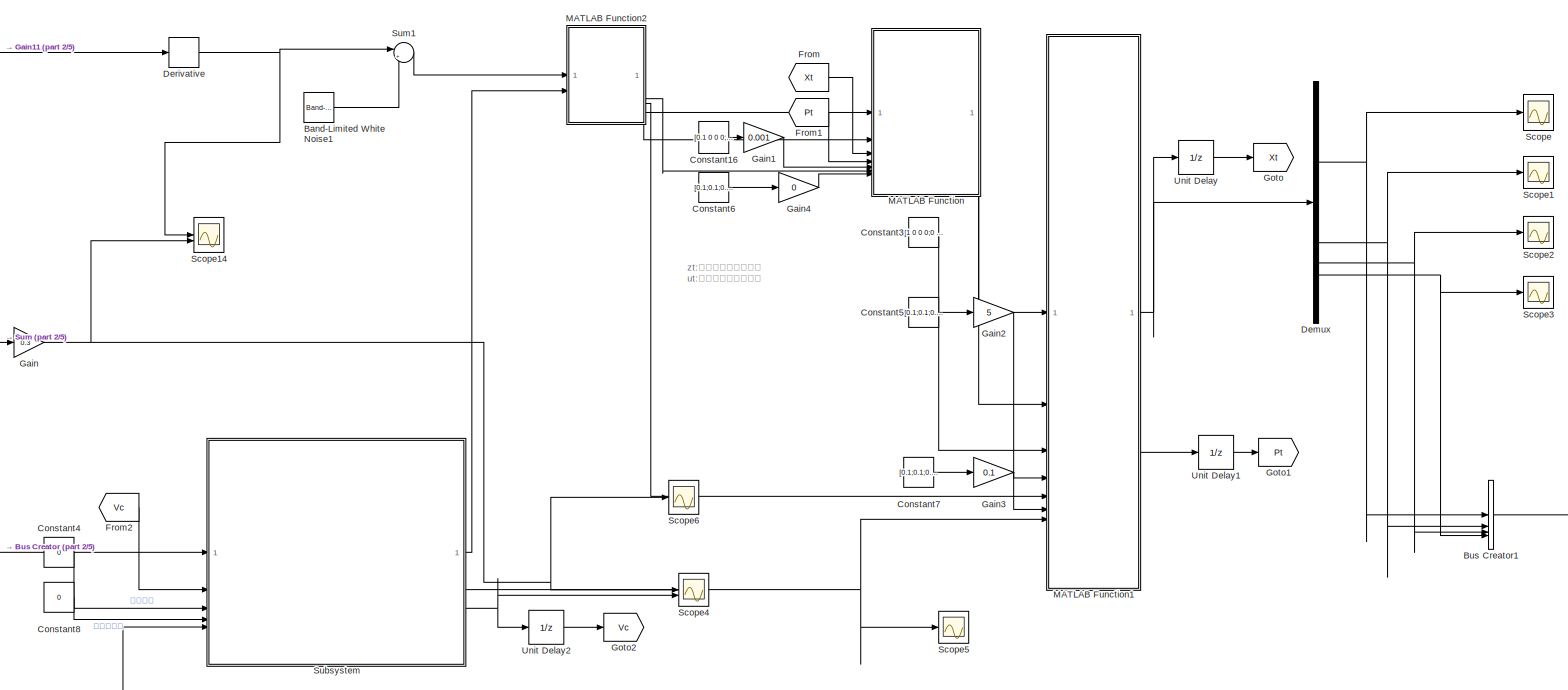
[diagram: root canvas - part 1/5, top center region]
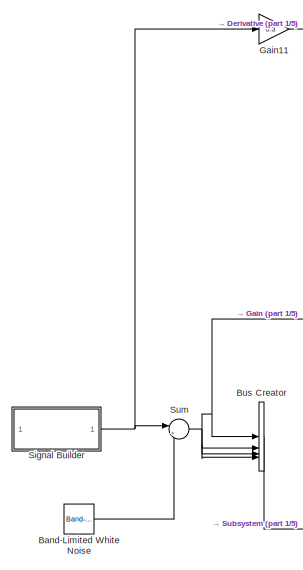
[diagram: root canvas - part 2/5, top left region]
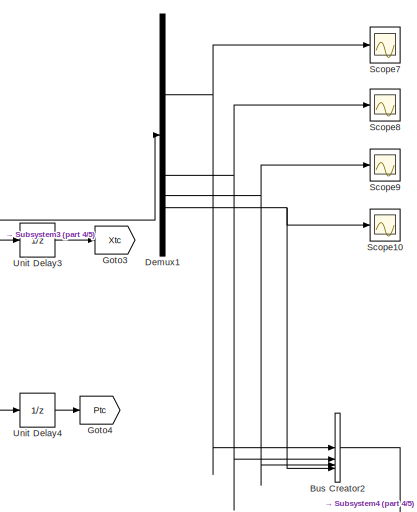
[diagram: root canvas - part 3/5, bottom right region]
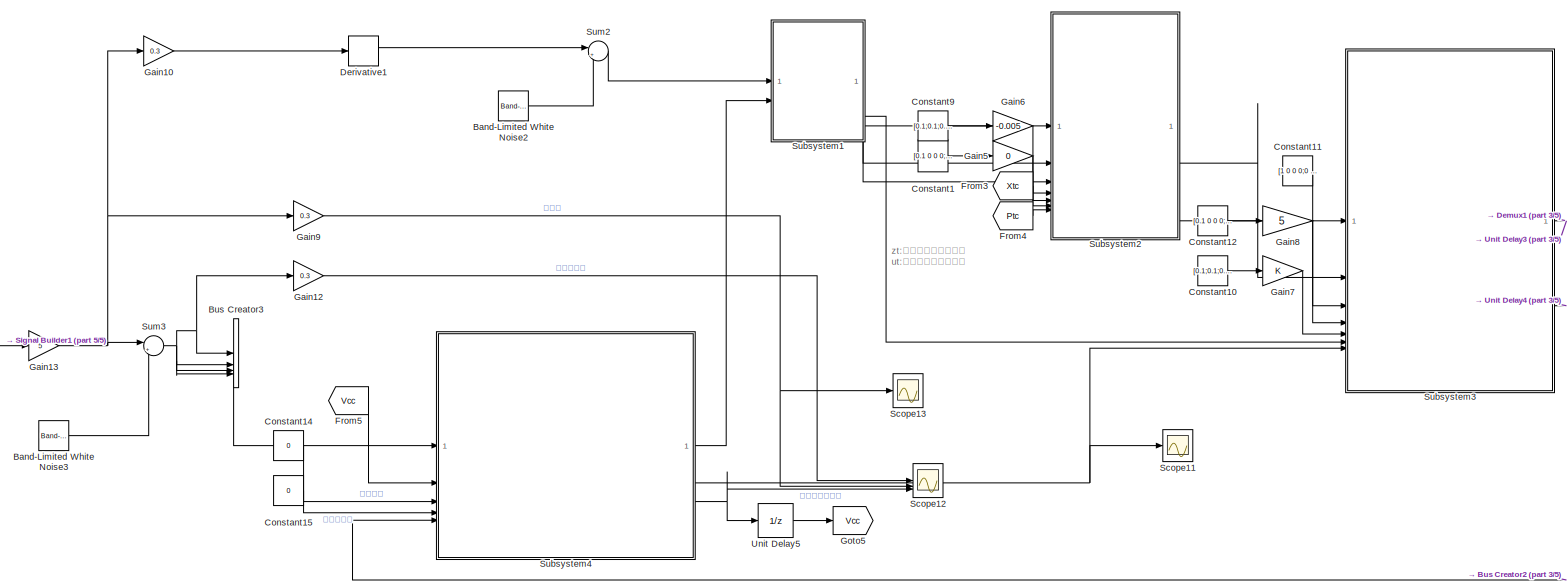
[diagram: root canvas - part 4/5, bottom center region]
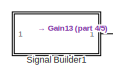
[diagram: root canvas - part 5/5, bottom left region]
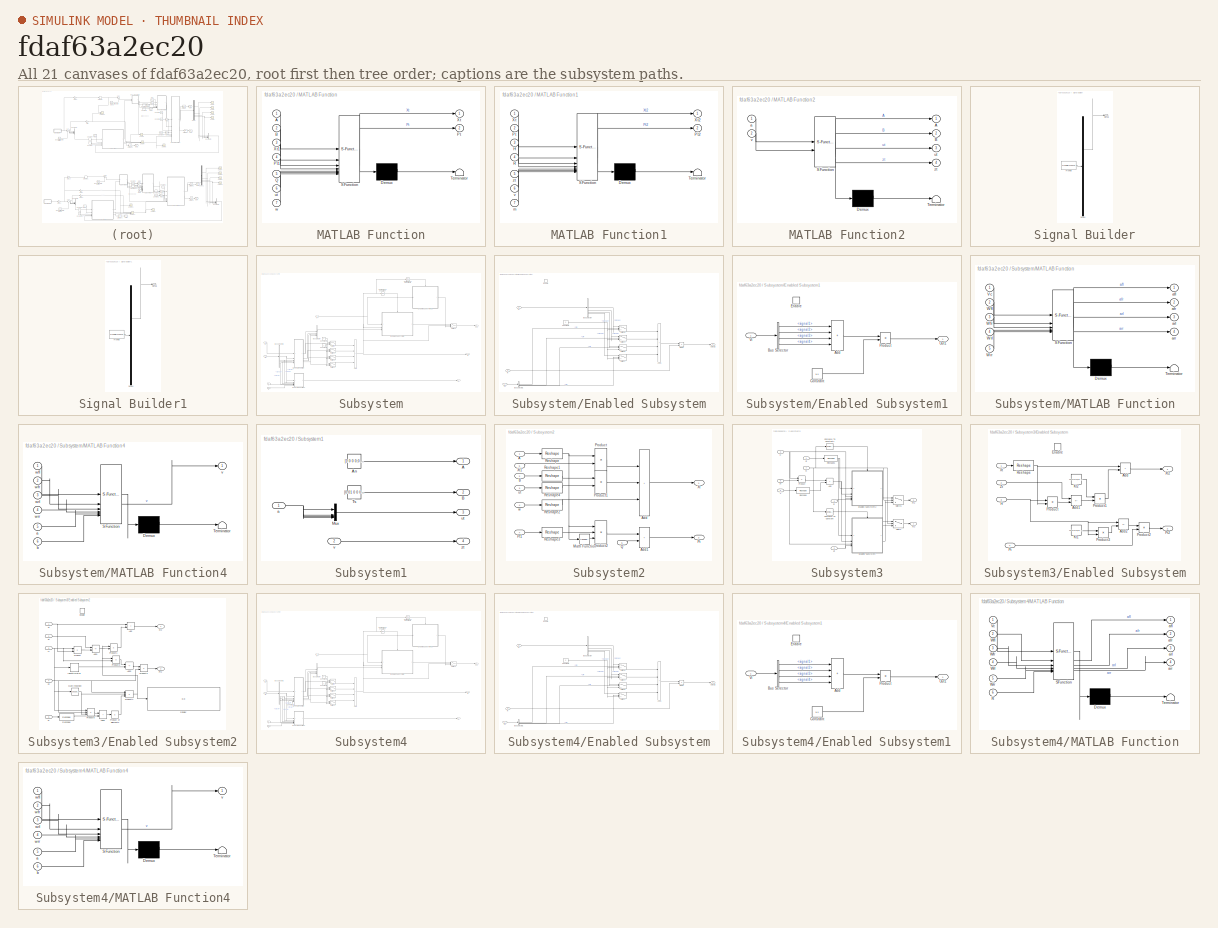
[diagram: thumbnail index - all 21 canvases of the model, root first then tree order]
MODEL slx_fdaf63a2ec20
KIND model
CONFIG AbsTol = auto
CONFIG EnableMultiTasking = off
CONFIG FixedStep = 0.01
CONFIG MaxStep = auto
CONFIG MinStep = auto
CONFIG RelTol = 1e-3
CONFIG SampleTimeConstraint = Unconstrained
CONFIG SolverName = FixedStepDiscrete
CONFIG StartTime = 0.0
CONFIG StopTime = 10.0
BLOCK [Reference] Band-Limited White Noise  REF=simulink/Sources/Band-Limited
White Noise
  Commented = on
  SourceBlock = simulink/Sources/Band-Limited\nWhite Noise
  SourceType = Band-Limited White Noise.
BLOCK [Reference] Band-Limited White Noise1  REF=simulink/Sources/Band-Limited
White Noise
  Commented = on
  SourceBlock = simulink/Sources/Band-Limited\nWhite Noise
  SourceType = Band-Limited White Noise.
BLOCK [Reference] Band-Limited White Noise2  REF=simulink/Sources/Band-Limited
White Noise
  SourceBlock = simulink/Sources/Band-Limited\nWhite Noise
  SourceType = Band-Limited White Noise.
BLOCK [Reference] Band-Limited White Noise3  REF=simulink/Sources/Band-Limited
White Noise
  SourceBlock = simulink/Sources/Band-Limited\nWhite Noise
  SourceType = Band-Limited White Noise.
BLOCK [BusCreator] Bus Creator
  Commented = on
  DisplayOption = bar
  InheritFromInputs = on
  Inputs = 4
BLOCK [BusCreator] Bus Creator1
  Commented = on
  DisplayOption = bar
  InheritFromInputs = on
  Inputs = 4
BLOCK [BusCreator] Bus Creator2
  DisplayOption = bar
  InheritFromInputs = on
  Inputs = 4
BLOCK [BusCreator] Bus Creator3
  DisplayOption = bar
  InheritFromInputs = on
  Inputs = 4
BLOCK [Constant] Constant1
  Value = [0.1 0 0 0;0 0.1 0 0;0 0 0.1 0;0 0 0 0.1]
BLOCK [Constant] Constant10
  Value = [0.1;0.1;0.1;0.1]
BLOCK [Constant] Constant11
  Value = [1 0 0 0;0 1 0 0;0 0 1 0;0 0 0 1]
BLOCK [Constant] Constant12
  Value = [0.1 0 0 0;0 0.1 0 0;0 0 0.1 0;0 0 0 0.1]
BLOCK [Constant] Constant14
  Value = 0
BLOCK [Constant] Constant15
  Value = 0
BLOCK [Constant] Constant16
  Commented = on
  Value = [0.1 0 0 0;0 0.1 0 0;0 0 0.1 0;0 0 0 0.1]
BLOCK [Constant] Constant3
  Commented = on
  Value = [1 0 0 0;0 1 0 0;0 0 1 0;0 0 0 1]
BLOCK [Constant] Constant4
  Commented = on
  Value = 0
BLOCK [Constant] Constant5
  Commented = on
  Value = [0.1;0.1;0.1;0.1]
BLOCK [Constant] Constant6
  Commented = on
  Value = [0.1;0.1;0.1;0.1]
BLOCK [Constant] Constant7
  Commented = on
  Value = [0.1;0.1;0.1;0.1]
BLOCK [Constant] Constant8
  Commented = on
  Value = 0
BLOCK [Constant] Constant9
  Value = [0.1;0.1;0.1;0.1]
BLOCK [Demux] Demux
  Commented = on
  NameLocation = right
BLOCK [Demux] Demux1
  NameLocation = right
BLOCK [Derivative] Derivative
  Commented = on
BLOCK [Derivative] Derivative1
BLOCK [From] From
  Commented = on
  GotoTag = Xt
BLOCK [From] From1
  Commented = on
  GotoTag = Pt
BLOCK [From] From2
  Commented = on
  GotoTag = Vc
BLOCK [From] From3
  GotoTag = Xtc
BLOCK [From] From4
  GotoTag = Ptc
BLOCK [From] From5
  GotoTag = Vcc
BLOCK [Gain] Gain
  Commented = on
  Gain = 0.3
BLOCK [Gain] Gain1
  Commented = on
  Gain = 0.001
BLOCK [Gain] Gain10
  Gain = 0.3
BLOCK [Gain] Gain11
  Commented = on
  Gain = 0.3
BLOCK [Gain] Gain12
  Gain = 0.3
BLOCK [Gain] Gain13
  Gain = 5
BLOCK [Gain] Gain2
  Commented = on
  Gain = 5
BLOCK [Gain] Gain3
  Commented = on
  Gain = 0.1
BLOCK [Gain] Gain4
  Commented = on
  Gain = 0
BLOCK [Gain] Gain5
  Gain = 0
BLOCK [Gain] Gain6
  Gain = -0.005
BLOCK [Gain] Gain7
BLOCK [Gain] Gain8
  Gain = 5
BLOCK [Gain] Gain9
  Gain = 0.3
BLOCK [Goto] Goto
  Commented = on
  GotoTag = Xt
BLOCK [Goto] Goto1
  Commented = on
  GotoTag = Pt
BLOCK [Goto] Goto2
  Commented = on
  GotoTag = Vc
BLOCK [Goto] Goto3
  GotoTag = Xtc
BLOCK [Goto] Goto4
  GotoTag = Ptc
BLOCK [Goto] Goto5
  GotoTag = Vcc
BLOCK [SubSystem] MATLAB Function
  Commented = on
  ErrorFcn = Stateflow.Translate.translate
  LibrarySourceBlock = simulink/User-Defined\nFunctions/MATLAB Function
  PermitHierarchicalResolution = ExplicitOnly
  SFBlockType = MATLAB Function
  TreatAsAtomicUnit = on
BLOCK [Demux] MATLAB Function/ Demux 
  Outputs = 1
BLOCK [S-Function] MATLAB Function/ SFunction 
  EnableBusSupport = on
  FunctionName = sf_sfun
  PortCounts = [7 3]
  SFcnIsStateOwnerBlock = off
  SFunctionDeploymentMode = off
  Tag = Stateflow S-Function 2
BLOCK [Terminator] MATLAB Function/ Terminator 
BLOCK [Inport] MATLAB Function/A
BLOCK [Inport] MATLAB Function/B
  Port = 2
BLOCK [Outport] MATLAB Function/Pt
  Port = 2
BLOCK [Inport] MATLAB Function/Pt1
  Port = 4
BLOCK [Inport] MATLAB Function/Q
  Port = 5
BLOCK [Outport] MATLAB Function/Xt
BLOCK [Inport] MATLAB Function/Xt1
  Port = 3
BLOCK [Inport] MATLAB Function/ut
  Port = 6
BLOCK [Inport] MATLAB Function/w
  Port = 7
BLOCK [SubSystem] MATLAB Function1
  Commented = on
  ErrorFcn = Stateflow.Translate.translate
  LibrarySourceBlock = simulink/User-Defined\nFunctions/MATLAB Function
  PermitHierarchicalResolution = ExplicitOnly
  SFBlockType = MATLAB Function
  TreatAsAtomicUnit = on
BLOCK [Demux] MATLAB Function1/ Demux 
  Outputs = 1
BLOCK [S-Function] MATLAB Function1/ SFunction 
  EnableBusSupport = on
  FunctionName = sf_sfun
  PortCounts = [7 3]
  SFcnIsStateOwnerBlock = off
  SFunctionDeploymentMode = off
  Tag = Stateflow S-Function 1
BLOCK [Terminator] MATLAB Function1/ Terminator 
BLOCK [Inport] MATLAB Function1/H
  Port = 3
BLOCK [Inport] MATLAB Function1/Pt
  Port = 2
BLOCK [Outport] MATLAB Function1/Pt2
  Port = 2
BLOCK [Inport] MATLAB Function1/R
  Port = 4
BLOCK [Inport] MATLAB Function1/Xt
BLOCK [Outport] MATLAB Function1/Xt2
BLOCK [Inport] MATLAB Function1/m
  Port = 7
BLOCK [Inport] MATLAB Function1/v
  Port = 6
BLOCK [Inport] MATLAB Function1/zt
  Port = 5
BLOCK [SubSystem] MATLAB Function2
  Commented = on
  ErrorFcn = Stateflow.Translate.translate
  LibrarySourceBlock = simulink/User-Defined\nFunctions/MATLAB Function
  PermitHierarchicalResolution = ExplicitOnly
  SFBlockType = MATLAB Function
  TreatAsAtomicUnit = on
BLOCK [Demux] MATLAB Function2/ Demux 
  Outputs = 1
BLOCK [S-Function] MATLAB Function2/ SFunction 
  EnableBusSupport = on
  FunctionName = sf_sfun
  PortCounts = [2 5]
  SFcnIsStateOwnerBlock = off
  SFunctionDeploymentMode = off
  Tag = Stateflow S-Function 3
BLOCK [Terminator] MATLAB Function2/ Terminator 
BLOCK [Outport] MATLAB Function2/A
BLOCK [Outport] MATLAB Function2/B
  Port = 2
BLOCK [Inport] MATLAB Function2/a
BLOCK [Outport] MATLAB Function2/ut
  Port = 3
BLOCK [Inport] MATLAB Function2/v
  Port = 2
BLOCK [Outport] MATLAB Function2/zt
  Port = 4
BLOCK [Scope] Scope
  Commented = on
  Floating = off
  NumInputPorts = 1
  ScopeSpecificationString = Simulink.scopes.TimeScopeBlockCfg('CurrentConfiguration', extmgr.ConfigurationSet(extmgr.Configuration('Core','General UI',true),extmgr.Configuration('Core','Source UI',true),extmgr.Configuration('Sources','WiredSimulink',true),extmgr.Configuration('Visuals','Time Domain',true,'SerializedDisplays',{struct('MinYLimReal','-1.44127','MaxYLimReal','16.16074','YLabelReal','','MinYLimMag','0.00000','Max...<+1403ch>
BLOCK [Scope] Scope1
  Commented = on
  Floating = off
  NumInputPorts = 1
  ScopeSpecificationString = Simulink.scopes.TimeScopeBlockCfg('CurrentConfiguration', extmgr.ConfigurationSet(extmgr.Configuration('Core','General UI',true),extmgr.Configuration('Core','Source UI',true),extmgr.Configuration('Sources','WiredSimulink',true,'DataLoggingVariableName','ScopeData1'),extmgr.Configuration('Visuals','Time Domain',true,'SerializedDisplays',{struct('MinYLimReal','-1.43694','MaxYLimReal','9.96818','YLab...<+1366ch>
BLOCK [Scope] Scope10
  Floating = off
  NumInputPorts = 1
  ScopeSpecificationString = Simulink.scopes.TimeScopeBlockCfg('CurrentConfiguration', extmgr.ConfigurationSet(extmgr.Configuration('Core','General UI',true),extmgr.Configuration('Core','Source UI',true),extmgr.Configuration('Sources','WiredSimulink',true,'DataLoggingVariableName','ScopeData1'),extmgr.Configuration('Visuals','Time Domain',true,'SerializedDisplays',{struct('MinYLimReal','-10.16906','MaxYLimReal','11.33652','YL...<+1372ch>
BLOCK [Scope] Scope11
  Floating = off
  NumInputPorts = 1
  ScopeSpecificationString = Simulink.scopes.TimeScopeBlockCfg('CurrentConfiguration', extmgr.ConfigurationSet(extmgr.Configuration('Core','General UI',true),extmgr.Configuration('Core','Source UI',true),extmgr.Configuration('Sources','WiredSimulink',true,'DataLoggingVariableName','ScopeData5'),extmgr.Configuration('Visuals','Time Domain',true,'SerializedDisplays',{struct('MinYLimReal','-0.5','MaxYLimReal','4.5','YLabelReal',...<+1400ch>
BLOCK [Scope] Scope12
  Floating = off
  NumInputPorts = 3
  ScopeSpecificationString = Simulink.scopes.TimeScopeBlockCfg('CurrentConfiguration', extmgr.ConfigurationSet(extmgr.Configuration('Core','General UI',true),extmgr.Configuration('Core','Source UI',true),extmgr.Configuration('Sources','WiredSimulink',true,'DataLoggingVariableName','ScopeData6'),extmgr.Configuration('Visuals','Time Domain',true,'SerializedDisplays',{struct('MinYLimReal','-7.72208','MaxYLimReal','61.27651','YLa...<+1456ch>
BLOCK [Scope] Scope13
  Floating = off
  NumInputPorts = 1
  ScopeSpecificationString = Simulink.scopes.TimeScopeBlockCfg('CurrentConfiguration', extmgr.ConfigurationSet(extmgr.Configuration('Core','General UI',true),extmgr.Configuration('Core','Source UI',true),extmgr.Configuration('Sources','WiredSimulink',true,'DataLoggingVariableName','ScopeData7'),extmgr.Configuration('Visuals','Time Domain',true,'SerializedDisplays',{struct('MinYLimReal','-2.17422','MaxYLimReal','17.4302','YLab...<+1435ch>
BLOCK [Scope] Scope14
  Commented = on
  Floating = off
  NumInputPorts = 2
  ScopeSpecificationString = Simulink.scopes.TimeScopeBlockCfg('CurrentConfiguration', extmgr.ConfigurationSet(extmgr.Configuration('Core','General UI',true),extmgr.Configuration('Core','Source UI',true),extmgr.Configuration('Sources','WiredSimulink',true,'DataLoggingVariableName','ScopeData8'),extmgr.Configuration('Visuals','Time Domain',true,'SerializedDisplays',{struct('MinYLimReal','-17.75','MaxYLimReal','27.75','YLabelRe...<+1436ch>
BLOCK [Scope] Scope2
  Commented = on
  Floating = off
  NumInputPorts = 1
  ScopeSpecificationString = Simulink.scopes.TimeScopeBlockCfg('CurrentConfiguration', extmgr.ConfigurationSet(extmgr.Configuration('Core','General UI',true),extmgr.Configuration('Core','Source UI',true),extmgr.Configuration('Sources','WiredSimulink',true,'DataLoggingVariableName','ScopeData2'),extmgr.Configuration('Visuals','Time Domain',true,'SerializedDisplays',{struct('MinYLimReal','-0.83694','MaxYLimReal','10.56818','YLa...<+1370ch>
BLOCK [Scope] Scope3
  Commented = on
  Floating = off
  NumInputPorts = 1
  ScopeSpecificationString = Simulink.scopes.TimeScopeBlockCfg('CurrentConfiguration', extmgr.ConfigurationSet(extmgr.Configuration('Core','General UI',true),extmgr.Configuration('Core','Source UI',true),extmgr.Configuration('Sources','WiredSimulink',true,'DataLoggingVariableName','ScopeData3'),extmgr.Configuration('Visuals','Time Domain',true,'SerializedDisplays',{struct('MinYLimReal','-10.16906','MaxYLimReal','11.33652','YL...<+1372ch>
BLOCK [Scope] Scope4
  Commented = on
  Floating = off
  NumInputPorts = 2
  ScopeSpecificationString = Simulink.scopes.TimeScopeBlockCfg('CurrentConfiguration', extmgr.ConfigurationSet(extmgr.Configuration('Core','General UI',true),extmgr.Configuration('Core','Source UI',true),extmgr.Configuration('Sources','WiredSimulink',true,'DataLoggingVariableName','ScopeData1'),extmgr.Configuration('Visuals','Time Domain',true,'SerializedDisplays',{struct('MinYLimReal','-1.977','MaxYLimReal','10.97809','YLabe...<+1449ch>
BLOCK [Scope] Scope5
  Commented = on
  Floating = off
  NumInputPorts = 1
  ScopeSpecificationString = Simulink.scopes.TimeScopeBlockCfg('CurrentConfiguration', extmgr.ConfigurationSet(extmgr.Configuration('Core','General UI',true),extmgr.Configuration('Core','Source UI',true),extmgr.Configuration('Sources','WiredSimulink',true,'DataLoggingVariableName','ScopeData2'),extmgr.Configuration('Visuals','Time Domain',true,'SerializedDisplays',{struct('MinYLimReal','-0.5','MaxYLimReal','4.5','YLabelReal',...<+1399ch>
BLOCK [Scope] Scope6
  Commented = on
  Floating = off
  NumInputPorts = 1
  ScopeSpecificationString = Simulink.scopes.TimeScopeBlockCfg('CurrentConfiguration', extmgr.ConfigurationSet(extmgr.Configuration('Core','General UI',true),extmgr.Configuration('Core','Source UI',true),extmgr.Configuration('Sources','WiredSimulink',true,'DataLoggingVariableName','ScopeData3'),extmgr.Configuration('Visuals','Time Domain',true,'SerializedDisplays',{struct('MinYLimReal','-2.17422','MaxYLimReal','17.4302','YLab...<+1435ch>
BLOCK [Scope] Scope7
  Floating = off
  NumInputPorts = 1
  ScopeSpecificationString = Simulink.scopes.TimeScopeBlockCfg('CurrentConfiguration', extmgr.ConfigurationSet(extmgr.Configuration('Core','General UI',true),extmgr.Configuration('Core','Source UI',true),extmgr.Configuration('Sources','WiredSimulink',true,'DataLoggingVariableName','ScopeData2'),extmgr.Configuration('Visuals','Time Domain',true,'SerializedDisplays',{struct('MinYLimReal','-11.35983','MaxYLimReal','101.27008','Y...<+1449ch>
BLOCK [Scope] Scope8
  Floating = off
  NumInputPorts = 1
  ScopeSpecificationString = Simulink.scopes.TimeScopeBlockCfg('CurrentConfiguration', extmgr.ConfigurationSet(extmgr.Configuration('Core','General UI',true),extmgr.Configuration('Core','Source UI',true),extmgr.Configuration('Sources','WiredSimulink',true,'DataLoggingVariableName','ScopeData3'),extmgr.Configuration('Visuals','Time Domain',true,'SerializedDisplays',{struct('MinYLimReal','-2.13435','MaxYLimReal','16.40189','YLa...<+1370ch>
BLOCK [Scope] Scope9
  Floating = off
  NumInputPorts = 1
  ScopeSpecificationString = Simulink.scopes.TimeScopeBlockCfg('CurrentConfiguration', extmgr.ConfigurationSet(extmgr.Configuration('Core','General UI',true),extmgr.Configuration('Core','Source UI',true),extmgr.Configuration('Sources','WiredSimulink',true,'DataLoggingVariableName','ScopeData4'),extmgr.Configuration('Visuals','Time Domain',true,'SerializedDisplays',{struct('MinYLimReal','-1.53435','MaxYLimReal','17.00189','YLa...<+1370ch>
BLOCK [SubSystem] Signal Builder
  ClipboardFcn = sigbuilder_block('clipboard');
  CloseFcn = sigbuilder_block('close');
  Commented = on
  ContinueFcn = sigbuilder_block('continue');
  CopyFcn = sigbuilder_block('copy');
  DeleteFcn = sigbuilder_block('delete');
  LoadFcn = sigbuilder_block('load');
  MaskHideContents = on
  ModelCloseFcn = sigbuilder_block('modelClose');
  NameChangeFcn = sigbuilder_block('namechange');
  OpenFcn = sigbuilder_block('open',[437.6 199.2 550.4 400 ]);
  PauseFcn = sigbuilder_block('pause');
  PreSaveFcn = sigbuilder_block('preSave');
  StartFcn = sigbuilder_block('start');
  StopFcn = sigbuilder_block('stop');
  Tag = STV Subsys
BLOCK [Demux] Signal Builder/Demux
  DisplayOption = none
  Outputs = 1
  Tag = STV Demux
BLOCK [FromWorkspace] Signal Builder/FromWs
  Tag = STV FromWs
  VariableName = tuvar
BLOCK [Outport] Signal Builder/Signal 1
  Tag = STV Outport
BLOCK [SubSystem] Signal Builder1
  ClipboardFcn = sigbuilder_block('clipboard');
  CloseFcn = sigbuilder_block('close');
  ContinueFcn = sigbuilder_block('continue');
  CopyFcn = sigbuilder_block('copy');
  DeleteFcn = sigbuilder_block('delete');
  LoadFcn = sigbuilder_block('load');
  MaskHideContents = on
  ModelCloseFcn = sigbuilder_block('modelClose');
  NameChangeFcn = sigbuilder_block('namechange');
  OpenFcn = sigbuilder_block('open',[437.6 199.2 550.4 400 ]);
  PauseFcn = sigbuilder_block('pause');
  PreSaveFcn = sigbuilder_block('preSave');
  StartFcn = sigbuilder_block('start');
  StopFcn = sigbuilder_block('stop');
  Tag = STV Subsys
BLOCK [Demux] Signal Builder1/Demux
  DisplayOption = none
  Outputs = 1
  Tag = STV Demux
BLOCK [FromWorkspace] Signal Builder1/FromWs
  Tag = STV FromWs
  VariableName = tuvar
BLOCK [Outport] Signal Builder1/Signal 1
  Tag = STV Outport
BLOCK [SubSystem] Subsystem
  Commented = on
BLOCK [Sum] Subsystem/Add
  IconShape = rectangular
  Inputs = ++++
BLOCK [BusCreator] Subsystem/Bus Creator
  DisplayOption = bar
  InheritFromInputs = on
  Inputs = 4
BLOCK [BusSelector] Subsystem/Bus Selector1
  OutputSignals = signal1,signal2,signal3,signal4
BLOCK [Reference] Subsystem/Compare To Constant  REF=simulink/Logic and Bit
Operations/Compare
To Constant
  SourceBlock = simulink/Logic and Bit\nOperations/Compare\nTo Constant
  SourceType = Compare To Constant
BLOCK [Reference] Subsystem/Compare To Constant1  REF=simulink/Logic and Bit
Operations/Compare
To Constant
  SourceBlock = simulink/Logic and Bit\nOperations/Compare\nTo Constant
  SourceType = Compare To Constant
BLOCK [Constant] Subsystem/Constant4
  Value = 0
BLOCK [Constant] Subsystem/Constant5
BLOCK [SubSystem] Subsystem/Enabled Subsystem
  TreatAsAtomicUnit = on
BLOCK [Sum] Subsystem/Enabled Subsystem/Add1
  IconShape = rectangular
  Inputs = ++++
BLOCK [BusSelector] Subsystem/Enabled Subsystem/Bus Selector
  OutputSignals = signal1,signal2,signal3,signal4
BLOCK [BusSelector] Subsystem/Enabled Subsystem/Bus Selector1
  OutputSignals = afl,afr,arl,arr
BLOCK [Constant] Subsystem/Enabled Subsystem/Constant1
  Value = 0
BLOCK [Product] Subsystem/Enabled Subsystem/Divide
  Inputs = */
BLOCK [EnablePort] Subsystem/Enabled Subsystem/Enable
BLOCK [Inport] Subsystem/Enabled Subsystem/In3
  Port = 3
BLOCK [Outport] Subsystem/Enabled Subsystem/Output2
BLOCK [Switch] Subsystem/Enabled Subsystem/Switch4
  Criteria = u2 ~= 0
  InputSameDT = off
  SaturateOnIntegerOverflow = off
  Threshold = 1
BLOCK [Switch] Subsystem/Enabled Subsystem/Switch5
  Criteria = u2 ~= 0
  InputSameDT = off
  SaturateOnIntegerOverflow = off
  Threshold = 1
BLOCK [Switch] Subsystem/Enabled Subsystem/Switch6
  Criteria = u2 ~= 0
  InputSameDT = off
  SaturateOnIntegerOverflow = off
  Threshold = 1
BLOCK [Switch] Subsystem/Enabled Subsystem/Switch7
  Criteria = u2 ~= 0
  InputSameDT = off
  SaturateOnIntegerOverflow = off
  Threshold = 1
BLOCK [Inport] Subsystem/Enabled Subsystem/Vi
BLOCK [Inport] Subsystem/Enabled Subsystem/m
  Port = 2
BLOCK [SubSystem] Subsystem/Enabled Subsystem1
  TreatAsAtomicUnit = on
BLOCK [Sum] Subsystem/Enabled Subsystem1/Add
  IconShape = rectangular
  Inputs = ++++
BLOCK [BusSelector] Subsystem/Enabled Subsystem1/Bus Selector
  OutputSignals = signal1,signal2,signal3,signal4
BLOCK [Constant] Subsystem/Enabled Subsystem1/Constant
  Value = 1/4
BLOCK [EnablePort] Subsystem/Enabled Subsystem1/Enable
BLOCK [Outport] Subsystem/Enabled Subsystem1/Out1
BLOCK [Product] Subsystem/Enabled Subsystem1/Product
BLOCK [Inport] Subsystem/Enabled Subsystem1/Vi
BLOCK [SubSystem] Subsystem/MATLAB Function
  ErrorFcn = Stateflow.Translate.translate
  LibrarySourceBlock = simulink/User-Defined\nFunctions/MATLAB Function
  PermitHierarchicalResolution = ExplicitOnly
  SFBlockType = MATLAB Function
  TreatAsAtomicUnit = on
BLOCK [Demux] Subsystem/MATLAB Function/ Demux 
  Outputs = 1
BLOCK [S-Function] Subsystem/MATLAB Function/ SFunction 
  EnableBusSupport = on
  FunctionName = sf_sfun
  PortCounts = [5 5]
  SFcnIsStateOwnerBlock = off
  SFunctionDeploymentMode = off
  Tag = Stateflow S-Function 5
BLOCK [Terminator] Subsystem/MATLAB Function/ Terminator 
BLOCK [Inport] Subsystem/MATLAB Function/Vc
BLOCK [Inport] Subsystem/MATLAB Function/Wfl
  Port = 2
BLOCK [Inport] Subsystem/MATLAB Function/Wfr
  Port = 3
BLOCK [Inport] Subsystem/MATLAB Function/Wrl
  Port = 4
BLOCK [Inport] Subsystem/MATLAB Function/Wrr
  Port = 5
BLOCK [Outport] Subsystem/MATLAB Function/afl
BLOCK [Outport] Subsystem/MATLAB Function/afr
  Port = 2
BLOCK [Outport] Subsystem/MATLAB Function/arl
  Port = 3
BLOCK [Outport] Subsystem/MATLAB Function/arr
  Port = 4
BLOCK [SubSystem] Subsystem/MATLAB Function4
  ErrorFcn = Stateflow.Translate.translate
  LibrarySourceBlock = simulink/User-Defined\nFunctions/MATLAB Function
  PermitHierarchicalResolution = ExplicitOnly
  SFBlockType = MATLAB Function
  TreatAsAtomicUnit = on
BLOCK [Demux] Subsystem/MATLAB Function4/ Demux 
  Outputs = 1
BLOCK [S-Function] Subsystem/MATLAB Function4/ SFunction 
  EnableBusSupport = on
  FunctionName = sf_sfun
  PortCounts = [6 2]
  SFcnIsStateOwnerBlock = off
  SFunctionDeploymentMode = off
  Tag = Stateflow S-Function 6
BLOCK [Terminator] Subsystem/MATLAB Function4/ Terminator 
BLOCK [Inport] Subsystem/MATLAB Function4/a
  Port = 5
BLOCK [Inport] Subsystem/MATLAB Function4/b
  Port = 6
BLOCK [Outport] Subsystem/MATLAB Function4/v
BLOCK [Inport] Subsystem/MATLAB Function4/wfl
BLOCK [Inport] Subsystem/MATLAB Function4/wfr
  Port = 2
BLOCK [Inport] Subsystem/MATLAB Function4/wrl
  Port = 3
BLOCK [Inport] Subsystem/MATLAB Function4/wrr
  Port = 4
BLOCK [Switch] Subsystem/Switch
  Criteria = u2 > Threshold
  InputSameDT = off
  SaturateOnIntegerOverflow = off
  Threshold = 0.16
BLOCK [Switch] Subsystem/Switch1
  Criteria = u2 > Threshold
  InputSameDT = off
  SaturateOnIntegerOverflow = off
  Threshold = 0.16
BLOCK [Switch] Subsystem/Switch2
  Criteria = u2 > Threshold
  InputSameDT = off
  SaturateOnIntegerOverflow = off
  Threshold = 0.16
BLOCK [Switch] Subsystem/Switch3
  Criteria = u2 > Threshold
  InputSameDT = off
  SaturateOnIntegerOverflow = off
  Threshold = 0.16
BLOCK [Switch] Subsystem/Switch4
  Criteria = u2 > Threshold
  InputSameDT = off
  SaturateOnIntegerOverflow = off
BLOCK [Outport] Subsystem/V
BLOCK [Inport] Subsystem/Vc
  Port = 2
BLOCK [Outport] Subsystem/Vc1
  Port = 3
BLOCK [Inport] Subsystem/Vi
  Port = 5
BLOCK [Inport] Subsystem/W
BLOCK [Inport] Subsystem/a
  Port = 3
BLOCK [Inport] Subsystem/b
  Port = 4
BLOCK [Outport] Subsystem/m
  Port = 2
BLOCK [SubSystem] Subsystem1
BLOCK [Outport] Subsystem1/A
BLOCK [Constant] Subsystem1/An
  Value = [1 0 0 0;0 1 0 0;0 0 1 0;0 0 0 1]
BLOCK [Outport] Subsystem1/B
  Port = 2
BLOCK [Mux] Subsystem1/Mux
  DisplayOption = bar
BLOCK [Constant] Subsystem1/Ts
  Value = [0.01 0 0 0;0 0.01 0 0;0 0 0.01 0;0 0 0 0.01]
BLOCK [Inport] Subsystem1/a
BLOCK [Outport] Subsystem1/ut
  Port = 3
BLOCK [Inport] Subsystem1/v
  Port = 2
BLOCK [Outport] Subsystem1/zt
  Port = 4
BLOCK [SubSystem] Subsystem2
BLOCK [Inport] Subsystem2/A
BLOCK [Sum] Subsystem2/Add
  IconShape = rectangular
  Inputs = +++
BLOCK [Sum] Subsystem2/Add1
  IconShape = rectangular
BLOCK [Inport] Subsystem2/B
  Port = 2
BLOCK [Math] Subsystem2/Math Function
  Operator = transpose
BLOCK [Product] Subsystem2/Product
  Multiplication = Matrix(*)
BLOCK [Product] Subsystem2/Product1
  Multiplication = Matrix(*)
BLOCK [Product] Subsystem2/Product2
  Inputs = 3
  Multiplication = Matrix(*)
BLOCK [Outport] Subsystem2/Pt
  Port = 2
BLOCK [Inport] Subsystem2/Pt1
  Port = 7
BLOCK [Inport] Subsystem2/Q
  Port = 5
BLOCK [Reshape] Subsystem2/Reshape
  OutputDimensionality = Customize
  OutputDimensions = [4,4]
BLOCK [Reshape] Subsystem2/Reshape1
  OutputDimensionality = Customize
  OutputDimensions = [4,4]
BLOCK [Reshape] Subsystem2/Reshape2
  OutputDimensionality = Customize
  OutputDimensions = [4,1]
BLOCK [Reshape] Subsystem2/Reshape3
  OutputDimensionality = Customize
  OutputDimensions = [4,4]
BLOCK [Reshape] Subsystem2/Reshape4
  OutputDimensionality = Customize
  OutputDimensions = [4,1]
BLOCK [Outport] Subsystem2/Xt
BLOCK [Inport] Subsystem2/Xt1
  Port = 6
BLOCK [Inport] Subsystem2/ut
  Port = 3
BLOCK [Inport] Subsystem2/w
  Port = 4
BLOCK [SubSystem] Subsystem3
BLOCK [Sum] Subsystem3/Add
  IconShape = rectangular
BLOCK [Reference] Subsystem3/Compare To Constant  REF=simulink/Logic and Bit
Operations/Compare
To Constant
  SourceBlock = simulink/Logic and Bit\nOperations/Compare\nTo Constant
  SourceType = Compare To Constant
BLOCK [Reference] Subsystem3/Compare To Constant1  REF=simulink/Logic and Bit
Operations/Compare
To Constant
  SourceBlock = simulink/Logic and Bit\nOperations/Compare\nTo Constant
  SourceType = Compare To Constant
BLOCK [SubSystem] Subsystem3/Enabled Subsystem
  TreatAsAtomicUnit = on
BLOCK [Sum] Subsystem3/Enabled Subsystem/Add
  IconShape = rectangular
BLOCK [Sum] Subsystem3/Enabled Subsystem/Add1
  IconShape = rectangular
  Inputs = +-
BLOCK [Sum] Subsystem3/Enabled Subsystem/Add2
  IconShape = rectangular
  Inputs = +-
BLOCK [EnablePort] Subsystem3/Enabled Subsystem/Enable
BLOCK [Inport] Subsystem3/Enabled Subsystem/H
  Port = 3
BLOCK [Constant] Subsystem3/Enabled Subsystem/Kt1
  Value = [0 0 0 0;0 0 0 0;0 0 0 0;0 0 0 0]
BLOCK [Constant] Subsystem3/Enabled Subsystem/Kt2
  Value = [0 0 0 0;0 0 0 0;0 0 0 0;0 0 0 0]
BLOCK [Product] Subsystem3/Enabled Subsystem/Product
  Multiplication = Matrix(*)
BLOCK [Product] Subsystem3/Enabled Subsystem/Product1
  Multiplication = Matrix(*)
BLOCK [Product] Subsystem3/Enabled Subsystem/Product2
  Multiplication = Matrix(*)
BLOCK [Product] Subsystem3/Enabled Subsystem/Product3
  Multiplication = Matrix(*)
BLOCK [Inport] Subsystem3/Enabled Subsystem/Pt
  Port = 4
BLOCK [Outport] Subsystem3/Enabled Subsystem/Pt2
  Port = 2
BLOCK [Reshape] Subsystem3/Enabled Subsystem/Reshape
  OutputDimensionality = Customize
  OutputDimensions = [4,1]
BLOCK [Inport] Subsystem3/Enabled Subsystem/Xt
BLOCK [Outport] Subsystem3/Enabled Subsystem/Xt2
BLOCK [Inport] Subsystem3/Enabled Subsystem/Zt
  Port = 2
BLOCK [SubSystem] Subsystem3/Enabled Subsystem2
  TreatAsAtomicUnit = on
BLOCK [Sum] Subsystem3/Enabled Subsystem2/Add
  IconShape = rectangular
BLOCK [Sum] Subsystem3/Enabled Subsystem2/Add1
  IconShape = rectangular
  Inputs = +-
BLOCK [Sum] Subsystem3/Enabled Subsystem2/Add2
  IconShape = rectangular
  Inputs = -+
BLOCK [Sum] Subsystem3/Enabled Subsystem2/Add3
  IconShape = rectangular
BLOCK [Display] Subsystem3/Enabled Subsystem2/Display
  Decimation = 1
BLOCK [EnablePort] Subsystem3/Enabled Subsystem2/Enable
BLOCK [Inport] Subsystem3/Enabled Subsystem2/H
  Port = 3
BLOCK [IdentityMatrix] Subsystem3/Enabled Subsystem2/IdentityMatrix
  InheritOutputPortAttributes = on
BLOCK [Math] Subsystem3/Enabled Subsystem2/Math Function
  Operator = transpose
BLOCK [Product] Subsystem3/Enabled Subsystem2/Product
  Multiplication = Matrix(*)
BLOCK [Product] Subsystem3/Enabled Subsystem2/Product of Elements
  Inputs = /
  Multiplication = Matrix(*)
BLOCK [Product] Subsystem3/Enabled Subsystem2/Product1
  Multiplication = Matrix(*)
BLOCK [Product] Subsystem3/Enabled Subsystem2/Product2
  Multiplication = Matrix(*)
BLOCK [Product] Subsystem3/Enabled Subsystem2/Product3
  Multiplication = Matrix(*)
BLOCK [Product] Subsystem3/Enabled Subsystem2/Product4
  Inputs = 3
  Multiplication = Matrix(*)
BLOCK [Product] Subsystem3/Enabled Subsystem2/Product5
  Inputs = 3
  Multiplication = Matrix(*)
BLOCK [Inport] Subsystem3/Enabled Subsystem2/Pt
  Port = 4
BLOCK [Outport] Subsystem3/Enabled Subsystem2/Pt2
  Port = 2
BLOCK [Inport] Subsystem3/Enabled Subsystem2/R
  Port = 5
BLOCK [Reshape] Subsystem3/Enabled Subsystem2/Reshape
  OutputDimensionality = Customize
  OutputDimensions = [4,4]
BLOCK [Inport] Subsystem3/Enabled Subsystem2/Xt
BLOCK [Outport] Subsystem3/Enabled Subsystem2/Xt2
BLOCK [Inport] Subsystem3/Enabled Subsystem2/Zt
  Port = 2
BLOCK [Inport] Subsystem3/H
  Port = 3
BLOCK [Product] Subsystem3/Product
  Multiplication = Matrix(*)
BLOCK [Inport] Subsystem3/Pt
  Port = 2
BLOCK [Outport] Subsystem3/Pt2
  Port = 2
BLOCK [Inport] Subsystem3/R
  Port = 4
BLOCK [Reshape] Subsystem3/Reshape
  OutputDimensionality = Customize
  OutputDimensions = [4,1]
BLOCK [Reshape] Subsystem3/Reshape1
  OutputDimensionality = Customize
  OutputDimensions = [4,1]
BLOCK [Switch] Subsystem3/Switch
  Criteria = u2 > Threshold
  InputSameDT = off
  SaturateOnIntegerOverflow = off
BLOCK [Switch] Subsystem3/Switch1
  Criteria = u2 > Threshold
  InputSameDT = off
  SaturateOnIntegerOverflow = off
BLOCK [Inport] Subsystem3/Xt
BLOCK [Outport] Subsystem3/Xt2
BLOCK [Inport] Subsystem3/m
  Port = 7
BLOCK [Inport] Subsystem3/v
  Port = 5
BLOCK [Inport] Subsystem3/zt
  Port = 6
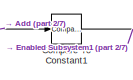
[diagram: Subsystem4 - part 1/7, top right region]
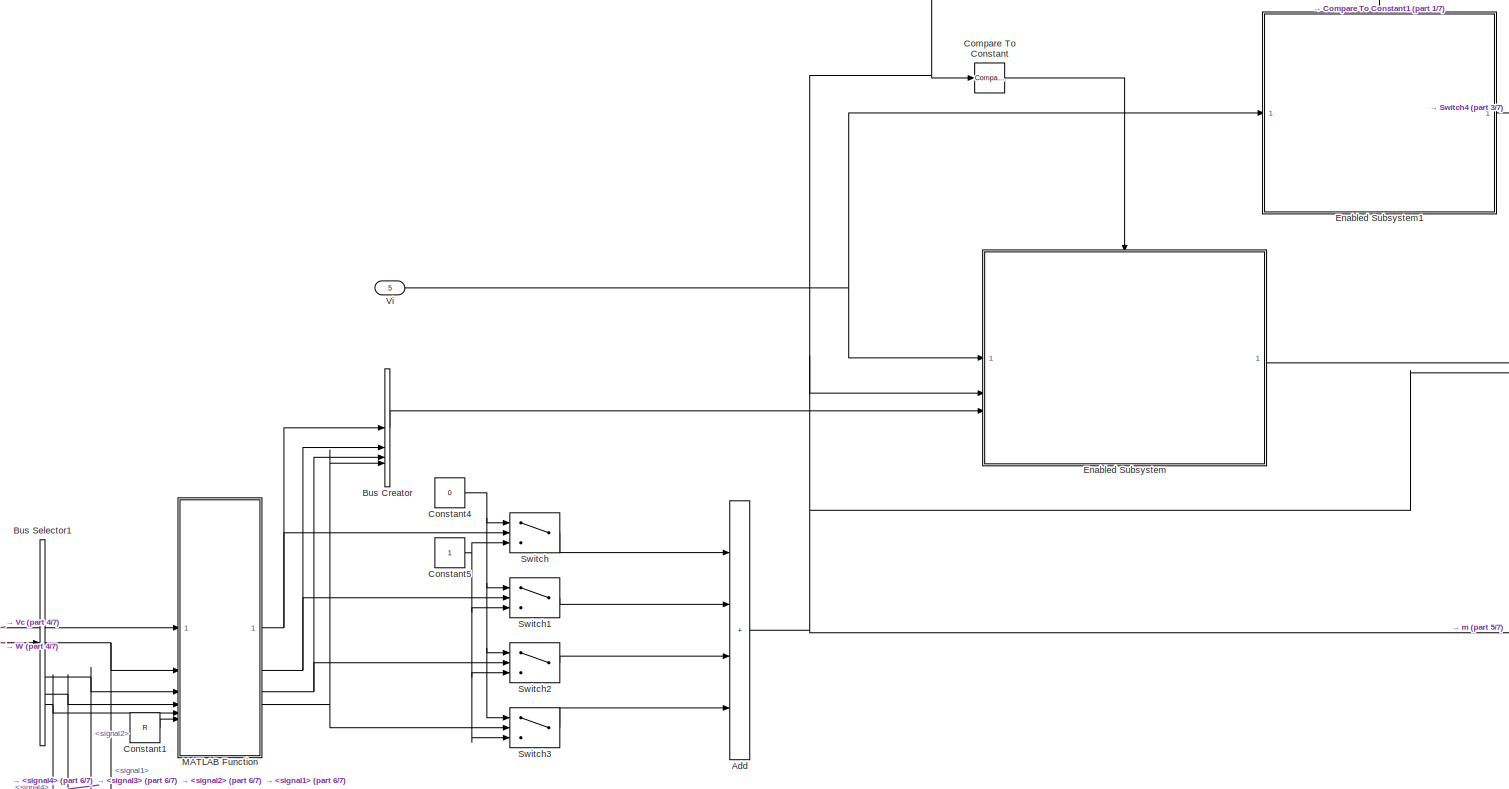
[diagram: Subsystem4 - part 2/7, full width, middle band]
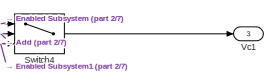
[diagram: Subsystem4 - part 3/7, middle right region]
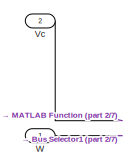
[diagram: Subsystem4 - part 4/7, middle left region]
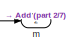
[diagram: Subsystem4 - part 5/7, bottom right region]
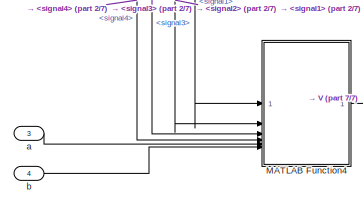
[diagram: Subsystem4 - part 6/7, bottom left region]
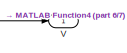
[diagram: Subsystem4 - part 7/7, bottom right region]
BLOCK [SubSystem] Subsystem4
BLOCK [Sum] Subsystem4/Add
  IconShape = rectangular
  Inputs = ++++
BLOCK [BusCreator] Subsystem4/Bus Creator
  DisplayOption = bar
  InheritFromInputs = on
  Inputs = 4
BLOCK [BusSelector] Subsystem4/Bus Selector1
  OutputSignals = signal1,signal2,signal3,signal4
BLOCK [Reference] Subsystem4/Compare To Constant  REF=simulink/Logic and Bit
Operations/Compare
To Constant
  SourceBlock = simulink/Logic and Bit\nOperations/Compare\nTo Constant
  SourceType = Compare To Constant
BLOCK [Reference] Subsystem4/Compare To Constant1  REF=simulink/Logic and Bit
Operations/Compare
To Constant
  SourceBlock = simulink/Logic and Bit\nOperations/Compare\nTo Constant
  SourceType = Compare To Constant
BLOCK [Constant] Subsystem4/Constant1
  Value = R
BLOCK [Constant] Subsystem4/Constant4
  Value = 0
BLOCK [Constant] Subsystem4/Constant5
BLOCK [SubSystem] Subsystem4/Enabled Subsystem
  TreatAsAtomicUnit = on
BLOCK [Sum] Subsystem4/Enabled Subsystem/Add1
  IconShape = rectangular
  Inputs = ++++
BLOCK [BusSelector] Subsystem4/Enabled Subsystem/Bus Selector
  OutputSignals = signal1,signal2,signal3,signal4
BLOCK [BusSelector] Subsystem4/Enabled Subsystem/Bus Selector1
  OutputSignals = afl,afr,arl,arr
BLOCK [Constant] Subsystem4/Enabled Subsystem/Constant1
  Value = 0
BLOCK [Product] Subsystem4/Enabled Subsystem/Divide
  Inputs = */
BLOCK [EnablePort] Subsystem4/Enabled Subsystem/Enable
BLOCK [Inport] Subsystem4/Enabled Subsystem/In3
  Port = 3
BLOCK [Outport] Subsystem4/Enabled Subsystem/Output2
BLOCK [Switch] Subsystem4/Enabled Subsystem/Switch4
  Criteria = u2 ~= 0
  InputSameDT = off
  SaturateOnIntegerOverflow = off
  Threshold = 1
BLOCK [Switch] Subsystem4/Enabled Subsystem/Switch5
  Criteria = u2 ~= 0
  InputSameDT = off
  SaturateOnIntegerOverflow = off
  Threshold = 1
BLOCK [Switch] Subsystem4/Enabled Subsystem/Switch6
  Criteria = u2 ~= 0
  InputSameDT = off
  SaturateOnIntegerOverflow = off
  Threshold = 1
BLOCK [Switch] Subsystem4/Enabled Subsystem/Switch7
  Criteria = u2 ~= 0
  InputSameDT = off
  SaturateOnIntegerOverflow = off
  Threshold = 1
BLOCK [Inport] Subsystem4/Enabled Subsystem/Vi
BLOCK [Inport] Subsystem4/Enabled Subsystem/m
  Port = 2
BLOCK [SubSystem] Subsystem4/Enabled Subsystem1
  TreatAsAtomicUnit = on
BLOCK [Sum] Subsystem4/Enabled Subsystem1/Add
  IconShape = rectangular
  Inputs = ++++
BLOCK [BusSelector] Subsystem4/Enabled Subsystem1/Bus Selector
  OutputSignals = signal1,signal2,signal3,signal4
BLOCK [Constant] Subsystem4/Enabled Subsystem1/Constant
  Value = 1/4
BLOCK [EnablePort] Subsystem4/Enabled Subsystem1/Enable
BLOCK [Outport] Subsystem4/Enabled Subsystem1/Out1
BLOCK [Product] Subsystem4/Enabled Subsystem1/Product
BLOCK [Inport] Subsystem4/Enabled Subsystem1/Vi
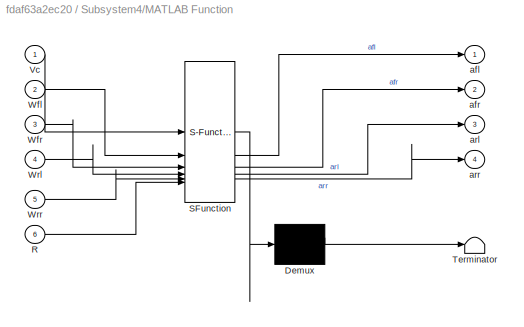
BLOCK [SubSystem] Subsystem4/MATLAB Function
  ErrorFcn = Stateflow.Translate.translate
  LibrarySourceBlock = simulink/User-Defined\nFunctions/MATLAB Function
  PermitHierarchicalResolution = ExplicitOnly
  SFBlockType = MATLAB Function
  TreatAsAtomicUnit = on
BLOCK [Demux] Subsystem4/MATLAB Function/ Demux 
  Outputs = 1
BLOCK [S-Function] Subsystem4/MATLAB Function/ SFunction 
  EnableBusSupport = on
  FunctionName = sf_sfun
  PortCounts = [6 5]
  SFcnIsStateOwnerBlock = off
  SFunctionDeploymentMode = off
  Tag = Stateflow S-Function 4
BLOCK [Terminator] Subsystem4/MATLAB Function/ Terminator 
BLOCK [Inport] Subsystem4/MATLAB Function/R
  Port = 6
BLOCK [Inport] Subsystem4/MATLAB Function/Vc
BLOCK [Inport] Subsystem4/MATLAB Function/Wfl
  Port = 2
BLOCK [Inport] Subsystem4/MATLAB Function/Wfr
  Port = 3
BLOCK [Inport] Subsystem4/MATLAB Function/Wrl
  Port = 4
BLOCK [Inport] Subsystem4/MATLAB Function/Wrr
  Port = 5
BLOCK [Outport] Subsystem4/MATLAB Function/afl
BLOCK [Outport] Subsystem4/MATLAB Function/afr
  Port = 2
BLOCK [Outport] Subsystem4/MATLAB Function/arl
  Port = 3
BLOCK [Outport] Subsystem4/MATLAB Function/arr
  Port = 4
BLOCK [SubSystem] Subsystem4/MATLAB Function4
  ErrorFcn = Stateflow.Translate.translate
  LibrarySourceBlock = simulink/User-Defined\nFunctions/MATLAB Function
  PermitHierarchicalResolution = ExplicitOnly
  SFBlockType = MATLAB Function
  TreatAsAtomicUnit = on
BLOCK [Demux] Subsystem4/MATLAB Function4/ Demux 
  Outputs = 1
BLOCK [S-Function] Subsystem4/MATLAB Function4/ SFunction 
  EnableBusSupport = on
  FunctionName = sf_sfun
  PortCounts = [6 2]
  SFcnIsStateOwnerBlock = off
  SFunctionDeploymentMode = off
  Tag = Stateflow S-Function 7
BLOCK [Terminator] Subsystem4/MATLAB Function4/ Terminator 
BLOCK [Inport] Subsystem4/MATLAB Function4/a
  Port = 5
BLOCK [Inport] Subsystem4/MATLAB Function4/b
  Port = 6
BLOCK [Outport] Subsystem4/MATLAB Function4/v
BLOCK [Inport] Subsystem4/MATLAB Function4/wfl
BLOCK [Inport] Subsystem4/MATLAB Function4/wfr
  Port = 2
BLOCK [Inport] Subsystem4/MATLAB Function4/wrl
  Port = 3
BLOCK [Inport] Subsystem4/MATLAB Function4/wrr
  Port = 4
BLOCK [Switch] Subsystem4/Switch
  Criteria = u2 > Threshold
  InputSameDT = off
  SaturateOnIntegerOverflow = off
  Threshold = 0.16
BLOCK [Switch] Subsystem4/Switch1
  Criteria = u2 > Threshold
  InputSameDT = off
  SaturateOnIntegerOverflow = off
  Threshold = 0.16
BLOCK [Switch] Subsystem4/Switch2
  Criteria = u2 > Threshold
  InputSameDT = off
  SaturateOnIntegerOverflow = off
  Threshold = 0.16
BLOCK [Switch] Subsystem4/Switch3
  Criteria = u2 > Threshold
  InputSameDT = off
  SaturateOnIntegerOverflow = off
  Threshold = 0.16
BLOCK [Switch] Subsystem4/Switch4
  Criteria = u2 > Threshold
  InputSameDT = off
  SaturateOnIntegerOverflow = off
BLOCK [Outport] Subsystem4/V
BLOCK [Inport] Subsystem4/Vc
  Port = 2
BLOCK [Outport] Subsystem4/Vc1
  Port = 3
BLOCK [Inport] Subsystem4/Vi
  Port = 5
BLOCK [Inport] Subsystem4/W
BLOCK [Inport] Subsystem4/a
  Port = 3
BLOCK [Inport] Subsystem4/b
  Port = 4
BLOCK [Outport] Subsystem4/m
  Port = 2
BLOCK [Sum] Sum
  Commented = on
  Inputs = |++
BLOCK [Sum] Sum1
  Commented = on
  Inputs = |++
BLOCK [Sum] Sum2
  Inputs = |++
BLOCK [Sum] Sum3
  Inputs = |++
BLOCK [UnitDelay] Unit Delay
  Commented = on
  HasFrameUpgradeWarning = on
  SampleTime = -1
BLOCK [UnitDelay] Unit Delay1
  Commented = on
  HasFrameUpgradeWarning = on
  SampleTime = -1
BLOCK [UnitDelay] Unit Delay2
  Commented = on
  HasFrameUpgradeWarning = on
  SampleTime = -1
BLOCK [UnitDelay] Unit Delay3
  HasFrameUpgradeWarning = on
  SampleTime = -1
BLOCK [UnitDelay] Unit Delay4
  HasFrameUpgradeWarning = on
  SampleTime = -1
BLOCK [UnitDelay] Unit Delay5
  HasFrameUpgradeWarning = on
  SampleTime = -1
ANNOTATION (root): zt:轮速等效质心处车速 ut:加速度计纵向加速度
LINE Band-Limited White Noise1:1 -> Sum1:2
LINE Band-Limited White Noise2:1 -> Sum2:2
LINE Band-Limited White Noise3:1 -> Sum3:2
LINE Band-Limited White Noise:1 -> Sum:2
LINE Bus Creator1:1 -> Subsystem:5
LINE Bus Creator2:1 -> Subsystem4:5
LINE Bus Creator3:1 -> Subsystem4:1
LINE Bus Creator:1 -> Subsystem:1
LINE Constant10:1 -> Gain7:1
LINE Constant11:1 -> Subsystem3:3
LINE Constant12:1 -> Gain8:1
LINE Constant14:1 -> Subsystem4:3
LINE Constant15:1 -> Subsystem4:4
LINE Constant16:1 -> Gain1:1
LINE Constant1:1 -> Gain5:1
LINE Constant3:1 -> MATLAB Function1:3
LINE Constant4:1 -> Subsystem:3
LINE Constant5:1 -> Gain2:1
LINE Constant6:1 -> Gain4:1
LINE Constant7:1 -> Gain3:1
LINE Constant8:1 -> Subsystem:4
LINE Constant9:1 -> Gain6:1
NET Demux1:1 -> Bus Creator2:1, Scope7:1
NET Demux1:2 -> Bus Creator2:2, Scope8:1
NET Demux1:3 -> Bus Creator2:3, Scope9:1
NET Demux1:4 -> Bus Creator2:4, Scope10:1
NET Demux:1 -> Bus Creator1:1, Scope:1
NET Demux:2 -> Bus Creator1:2, Scope1:1
NET Demux:3 -> Bus Creator1:3, Scope2:1
NET Demux:4 -> Bus Creator1:4, Scope3:1
LINE Derivative1:1 -> Sum2:1
NET Derivative:1 -> Scope14:1, Sum1:1
LINE From1:1 -> MATLAB Function:4
LINE From2:1 -> Subsystem:2
LINE From3:1 -> Subsystem2:6
LINE From4:1 -> Subsystem2:7
LINE From5:1 -> Subsystem4:2
LINE From:1 -> MATLAB Function:3
LINE Gain10:1 -> Derivative1:1
LINE Gain11:1 -> Derivative:1
LINE Gain12:1 -> Scope12:1
NET Gain13:1 -> Gain10:1, Gain9:1, Sum3:1
LINE Gain1:1 -> MATLAB Function:5
LINE Gain2:1 -> MATLAB Function1:4
LINE Gain3:1 -> MATLAB Function1:6
LINE Gain4:1 -> MATLAB Function:7
LINE Gain5:1 -> Subsystem2:5
LINE Gain6:1 -> Subsystem2:4
LINE Gain7:1 -> Subsystem3:5
LINE Gain8:1 -> Subsystem3:4
NET Gain9:1 -> Scope12:2, Scope13:1
NET Gain:1 -> Scope14:2, Scope4:1, Scope6:1
NET MATLAB Function1:1 -> Demux:1, Unit Delay:1
LINE MATLAB Function1:2 -> Unit Delay1:1
LINE MATLAB Function2:1 -> MATLAB Function:1
LINE MATLAB Function2:2 -> MATLAB Function:2
LINE MATLAB Function2:3 -> MATLAB Function:6
LINE MATLAB Function2:4 -> MATLAB Function1:5
LINE MATLAB Function:1 -> MATLAB Function1:1
LINE MATLAB Function:2 -> MATLAB Function1:2
LINE Signal Builder1:1 -> Gain13:1
NET Signal Builder:1 -> Gain11:1, Sum:1
NET Subsystem/Add:1 -> Subsystem/Compare To Constant1:1, Subsystem/Compare To Constant:1, Subsystem/Enabled Subsystem:2, Subsystem/Switch4:2, Subsystem/m:1
LINE Subsystem/Bus Creator:1 -> Subsystem/Enabled Subsystem:3
NET Subsystem/Bus Selector1:1 -> Subsystem/MATLAB Function4:1, Subsystem/MATLAB Function:2
NET Subsystem/Bus Selector1:2 -> Subsystem/MATLAB Function4:2, Subsystem/MATLAB Function:3
NET Subsystem/Bus Selector1:3 -> Subsystem/MATLAB Function4:3, Subsystem/MATLAB Function:4
NET Subsystem/Bus Selector1:4 -> Subsystem/MATLAB Function4:4, Subsystem/MATLAB Function:5
LINE Subsystem/Compare To Constant1:1 -> Subsystem/Enabled Subsystem1:enable
LINE Subsystem/Compare To Constant:1 -> Subsystem/Enabled Subsystem:enable
NET Subsystem/Constant4:1 -> Subsystem/Switch1:1, Subsystem/Switch2:1, Subsystem/Switch3:1, Subsystem/Switch:1
NET Subsystem/Constant5:1 -> Subsystem/Switch1:3, Subsystem/Switch2:3, Subsystem/Switch3:3, Subsystem/Switch:3
LINE Subsystem/Enabled Subsystem/Add1:1 -> Subsystem/Enabled Subsystem/Divide:1
LINE Subsystem/Enabled Subsystem/Bus Selector1:1 -> Subsystem/Enabled Subsystem/Switch5:2
LINE Subsystem/Enabled Subsystem/Bus Selector1:2 -> Subsystem/Enabled Subsystem/Switch4:2
LINE Subsystem/Enabled Subsystem/Bus Selector1:3 -> Subsystem/Enabled Subsystem/Switch6:2
LINE Subsystem/Enabled Subsystem/Bus Selector1:4 -> Subsystem/Enabled Subsystem/Switch7:2
LINE Subsystem/Enabled Subsystem/Bus Selector:1 -> Subsystem/Enabled Subsystem/Switch5:1
LINE Subsystem/Enabled Subsystem/Bus Selector:2 -> Subsystem/Enabled Subsystem/Switch4:1
LINE Subsystem/Enabled Subsystem/Bus Selector:3 -> Subsystem/Enabled Subsystem/Switch6:1
LINE Subsystem/Enabled Subsystem/Bus Selector:4 -> Subsystem/Enabled Subsystem/Switch7:1
NET Subsystem/Enabled Subsystem/Constant1:1 -> Subsystem/Enabled Subsystem/Switch4:3, Subsystem/Enabled Subsystem/Switch5:3, Subsystem/Enabled Subsystem/Switch6:3, Subsystem/Enabled Subsystem/Switch7:3
LINE Subsystem/Enabled Subsystem/Divide:1 -> Subsystem/Enabled Subsystem/Output2:1
LINE Subsystem/Enabled Subsystem/In3:1 -> Subsystem/Enabled Subsystem/Bus Selector1:1
LINE Subsystem/Enabled Subsystem/Switch4:1 -> Subsystem/Enabled Subsystem/Add1:2
LINE Subsystem/Enabled Subsystem/Switch5:1 -> Subsystem/Enabled Subsystem/Add1:1
LINE Subsystem/Enabled Subsystem/Switch6:1 -> Subsystem/Enabled Subsystem/Add1:3
LINE Subsystem/Enabled Subsystem/Switch7:1 -> Subsystem/Enabled Subsystem/Add1:4
LINE Subsystem/Enabled Subsystem/Vi:1 -> Subsystem/Enabled Subsystem/Bus Selector:1
LINE Subsystem/Enabled Subsystem/m:1 -> Subsystem/Enabled Subsystem/Divide:2
LINE Subsystem/Enabled Subsystem1/Add:1 -> Subsystem/Enabled Subsystem1/Product:1
LINE Subsystem/Enabled Subsystem1/Bus Selector:1 -> Subsystem/Enabled Subsystem1/Add:1
LINE Subsystem/Enabled Subsystem1/Bus Selector:2 -> Subsystem/Enabled Subsystem1/Add:2
LINE Subsystem/Enabled Subsystem1/Bus Selector:3 -> Subsystem/Enabled Subsystem1/Add:3
LINE Subsystem/Enabled Subsystem1/Bus Selector:4 -> Subsystem/Enabled Subsystem1/Add:4
LINE Subsystem/Enabled Subsystem1/Constant:1 -> Subsystem/Enabled Subsystem1/Product:2
LINE Subsystem/Enabled Subsystem1/Product:1 -> Subsystem/Enabled Subsystem1/Out1:1
LINE Subsystem/Enabled Subsystem1/Vi:1 -> Subsystem/Enabled Subsystem1/Bus Selector:1
LINE Subsystem/Enabled Subsystem1:1 -> Subsystem/Switch4:3
LINE Subsystem/Enabled Subsystem:1 -> Subsystem/Switch4:1
LINE Subsystem/MATLAB Function4:1 -> Subsystem/V:1
NET Subsystem/MATLAB Function:1 -> Subsystem/Bus Creator:1, Subsystem/Switch:2
NET Subsystem/MATLAB Function:2 -> Subsystem/Bus Creator:2, Subsystem/Switch1:2
NET Subsystem/MATLAB Function:3 -> Subsystem/Bus Creator:3, Subsystem/Switch2:2
NET Subsystem/MATLAB Function:4 -> Subsystem/Bus Creator:4, Subsystem/Switch3:2
LINE Subsystem/Switch1:1 -> Subsystem/Add:2
LINE Subsystem/Switch2:1 -> Subsystem/Add:3
LINE Subsystem/Switch3:1 -> Subsystem/Add:4
LINE Subsystem/Switch4:1 -> Subsystem/Vc1:1
LINE Subsystem/Switch:1 -> Subsystem/Add:1
LINE Subsystem/Vc:1 -> Subsystem/MATLAB Function:1
NET Subsystem/Vi:1 -> Subsystem/Enabled Subsystem1:1, Subsystem/Enabled Subsystem:1
LINE Subsystem/W:1 -> Subsystem/Bus Selector1:1
LINE Subsystem/a:1 -> Subsystem/MATLAB Function4:5
LINE Subsystem/b:1 -> Subsystem/MATLAB Function4:6
LINE Subsystem1/An:1 -> Subsystem1/A:1
LINE Subsystem1/Mux:1 -> Subsystem1/ut:1
LINE Subsystem1/Ts:1 -> Subsystem1/B:1
NET Subsystem1/a:1 -> Subsystem1/Mux:1, Subsystem1/Mux:2, Subsystem1/Mux:3, Subsystem1/Mux:4
LINE Subsystem1/v:1 -> Subsystem1/zt:1
LINE Subsystem1:1 -> Subsystem2:1
LINE Subsystem1:2 -> Subsystem2:2
LINE Subsystem1:3 -> Subsystem2:3
LINE Subsystem1:4 -> Subsystem3:6
LINE Subsystem2/A:1 -> Subsystem2/Reshape:1
LINE Subsystem2/Add1:1 -> Subsystem2/Pt:1
LINE Subsystem2/Add:1 -> Subsystem2/Xt:1
LINE Subsystem2/B:1 -> Subsystem2/Reshape1:1
LINE Subsystem2/Math Function:1 -> Subsystem2/Product2:3
LINE Subsystem2/Product1:1 -> Subsystem2/Add:2
LINE Subsystem2/Product2:1 -> Subsystem2/Add1:1
LINE Subsystem2/Product:1 -> Subsystem2/Add:1
LINE Subsystem2/Pt1:1 -> Subsystem2/Reshape3:1
LINE Subsystem2/Q:1 -> Subsystem2/Add1:2
LINE Subsystem2/Reshape1:1 -> Subsystem2/Product1:1
LINE Subsystem2/Reshape2:1 -> Subsystem2/Add:3
LINE Subsystem2/Reshape3:1 -> Subsystem2/Product2:2
LINE Subsystem2/Reshape4:1 -> Subsystem2/Product1:2
NET Subsystem2/Reshape:1 -> Subsystem2/Math Function:1, Subsystem2/Product2:1, Subsystem2/Product:1
LINE Subsystem2/Xt1:1 -> Subsystem2/Product:2
LINE Subsystem2/ut:1 -> Subsystem2/Reshape4:1
LINE Subsystem2/w:1 -> Subsystem2/Reshape2:1
LINE Subsystem2:1 -> Subsystem3:1
LINE Subsystem2:2 -> Subsystem3:2
NET Subsystem3/Add:1 -> Subsystem3/Enabled Subsystem2:2, Subsystem3/Enabled Subsystem:2
LINE Subsystem3/Compare To Constant1:1 -> Subsystem3/Enabled Subsystem2:enable
LINE Subsystem3/Compare To Constant:1 -> Subsystem3/Enabled Subsystem:enable
LINE Subsystem3/Enabled Subsystem/Add1:1 -> Subsystem3/Enabled Subsystem/Product1:2
LINE Subsystem3/Enabled Subsystem/Add2:1 -> Subsystem3/Enabled Subsystem/Product2:1
LINE Subsystem3/Enabled Subsystem/Add:1 -> Subsystem3/Enabled Subsystem/Xt2:1
NET Subsystem3/Enabled Subsystem/H:1 -> Subsystem3/Enabled Subsystem/Add2:1, Subsystem3/Enabled Subsystem/Product3:2, Subsystem3/Enabled Subsystem/Product:1
LINE Subsystem3/Enabled Subsystem/Kt1:1 -> Subsystem3/Enabled Subsystem/Product3:1
LINE Subsystem3/Enabled Subsystem/Kt2:1 -> Subsystem3/Enabled Subsystem/Product1:1
LINE Subsystem3/Enabled Subsystem/Product1:1 -> Subsystem3/Enabled Subsystem/Add:2
LINE Subsystem3/Enabled Subsystem/Product2:1 -> Subsystem3/Enabled Subsystem/Pt2:1
LINE Subsystem3/Enabled Subsystem/Product3:1 -> Subsystem3/Enabled Subsystem/Add2:2
LINE Subsystem3/Enabled Subsystem/Product:1 -> Subsystem3/Enabled Subsystem/Add1:2
LINE Subsystem3/Enabled Subsystem/Pt:1 -> Subsystem3/Enabled Subsystem/Product2:2
NET Subsystem3/Enabled Subsystem/Reshape:1 -> Subsystem3/Enabled Subsystem/Add:1, Subsystem3/Enabled Subsystem/Product:2
LINE Subsystem3/Enabled Subsystem/Xt:1 -> Subsystem3/Enabled Subsystem/Reshape:1
LINE Subsystem3/Enabled Subsystem/Zt:1 -> Subsystem3/Enabled Subsystem/Add1:1
LINE Subsystem3/Enabled Subsystem2/Add1:1 -> Subsystem3/Enabled Subsystem2/Product1:2
LINE Subsystem3/Enabled Subsystem2/Add2:1 -> Subsystem3/Enabled Subsystem2/Product2:1
LINE Subsystem3/Enabled Subsystem2/Add3:1 -> Subsystem3/Enabled Subsystem2/Product of Elements:1
LINE Subsystem3/Enabled Subsystem2/Add:1 -> Subsystem3/Enabled Subsystem2/Xt2:1
NET Subsystem3/Enabled Subsystem2/H:1 -> Subsystem3/Enabled Subsystem2/IdentityMatrix:1, Subsystem3/Enabled Subsystem2/Math Function:1, Subsystem3/Enabled Subsystem2/Product3:2, Subsystem3/Enabled Subsystem2/Product5:1, Subsystem3/Enabled Subsystem2/Product:1
LINE Subsystem3/Enabled Subsystem2/IdentityMatrix:1 -> Subsystem3/Enabled Subsystem2/Add2:2
NET Subsystem3/Enabled Subsystem2/Math Function:1 -> Subsystem3/Enabled Subsystem2/Product4:2, Subsystem3/Enabled Subsystem2/Product5:3
LINE Subsystem3/Enabled Subsystem2/Product of Elements:1 -> Subsystem3/Enabled Subsystem2/Product4:3
LINE Subsystem3/Enabled Subsystem2/Product1:1 -> Subsystem3/Enabled Subsystem2/Add:2
LINE Subsystem3/Enabled Subsystem2/Product2:1 -> Subsystem3/Enabled Subsystem2/Pt2:1
LINE Subsystem3/Enabled Subsystem2/Product3:1 -> Subsystem3/Enabled Subsystem2/Add2:1
NET Subsystem3/Enabled Subsystem2/Product4:1 -> Subsystem3/Enabled Subsystem2/Display:1, Subsystem3/Enabled Subsystem2/Product1:1, Subsystem3/Enabled Subsystem2/Product3:1
LINE Subsystem3/Enabled Subsystem2/Product5:1 -> Subsystem3/Enabled Subsystem2/Add3:1
LINE Subsystem3/Enabled Subsystem2/Product:1 -> Subsystem3/Enabled Subsystem2/Add1:2
NET Subsystem3/Enabled Subsystem2/Pt:1 -> Subsystem3/Enabled Subsystem2/Product2:2, Subsystem3/Enabled Subsystem2/Product4:1, Subsystem3/Enabled Subsystem2/Product5:2
LINE Subsystem3/Enabled Subsystem2/R:1 -> Subsystem3/Enabled Subsystem2/Reshape:1
LINE Subsystem3/Enabled Subsystem2/Reshape:1 -> Subsystem3/Enabled Subsystem2/Add3:2
NET Subsystem3/Enabled Subsystem2/Xt:1 -> Subsystem3/Enabled Subsystem2/Add:1, Subsystem3/Enabled Subsystem2/Product:2
LINE Subsystem3/Enabled Subsystem2/Zt:1 -> Subsystem3/Enabled Subsystem2/Add1:1
LINE Subsystem3/Enabled Subsystem2:1 -> Subsystem3/Switch:1
LINE Subsystem3/Enabled Subsystem2:2 -> Subsystem3/Switch1:1
LINE Subsystem3/Enabled Subsystem:1 -> Subsystem3/Switch:3
LINE Subsystem3/Enabled Subsystem:2 -> Subsystem3/Switch1:3
NET Subsystem3/H:1 -> Subsystem3/Enabled Subsystem2:3, Subsystem3/Enabled Subsystem:3, Subsystem3/Product:1
LINE Subsystem3/Product:1 -> Subsystem3/Add:1
NET Subsystem3/Pt:1 -> Subsystem3/Enabled Subsystem2:4, Subsystem3/Enabled Subsystem:4
LINE Subsystem3/R:1 -> Subsystem3/Enabled Subsystem2:5
NET Subsystem3/Reshape1:1 -> Subsystem3/Enabled Subsystem2:1, Subsystem3/Enabled Subsystem:1
LINE Subsystem3/Reshape:1 -> Subsystem3/Add:2
LINE Subsystem3/Switch1:1 -> Subsystem3/Pt2:1
LINE Subsystem3/Switch:1 -> Subsystem3/Xt2:1
LINE Subsystem3/Xt:1 -> Subsystem3/Reshape1:1
NET Subsystem3/m:1 -> Subsystem3/Compare To Constant1:1, Subsystem3/Compare To Constant:1, Subsystem3/Switch1:2, Subsystem3/Switch:2
LINE Subsystem3/v:1 -> Subsystem3/Reshape:1
LINE Subsystem3/zt:1 -> Subsystem3/Product:2
NET Subsystem3:1 -> Demux1:1, Unit Delay3:1
LINE Subsystem3:2 -> Unit Delay4:1
NET Subsystem4/Add:1 -> Subsystem4/Compare To Constant1:1, Subsystem4/Compare To Constant:1, Subsystem4/Enabled Subsystem:2, Subsystem4/Switch4:2, Subsystem4/m:1
LINE Subsystem4/Bus Creator:1 -> Subsystem4/Enabled Subsystem:3
NET Subsystem4/Bus Selector1:1 -> Subsystem4/MATLAB Function4:1, Subsystem4/MATLAB Function:2
NET Subsystem4/Bus Selector1:2 -> Subsystem4/MATLAB Function4:2, Subsystem4/MATLAB Function:3
NET Subsystem4/Bus Selector1:3 -> Subsystem4/MATLAB Function4:3, Subsystem4/MATLAB Function:4
NET Subsystem4/Bus Selector1:4 -> Subsystem4/MATLAB Function4:4, Subsystem4/MATLAB Function:5
LINE Subsystem4/Compare To Constant1:1 -> Subsystem4/Enabled Subsystem1:enable
LINE Subsystem4/Compare To Constant:1 -> Subsystem4/Enabled Subsystem:enable
LINE Subsystem4/Constant1:1 -> Subsystem4/MATLAB Function:6
NET Subsystem4/Constant4:1 -> Subsystem4/Switch1:1, Subsystem4/Switch2:1, Subsystem4/Switch3:1, Subsystem4/Switch:1
NET Subsystem4/Constant5:1 -> Subsystem4/Switch1:3, Subsystem4/Switch2:3, Subsystem4/Switch3:3, Subsystem4/Switch:3
LINE Subsystem4/Enabled Subsystem/Add1:1 -> Subsystem4/Enabled Subsystem/Divide:1
LINE Subsystem4/Enabled Subsystem/Bus Selector1:1 -> Subsystem4/Enabled Subsystem/Switch5:2
LINE Subsystem4/Enabled Subsystem/Bus Selector1:2 -> Subsystem4/Enabled Subsystem/Switch4:2
LINE Subsystem4/Enabled Subsystem/Bus Selector1:3 -> Subsystem4/Enabled Subsystem/Switch6:2
LINE Subsystem4/Enabled Subsystem/Bus Selector1:4 -> Subsystem4/Enabled Subsystem/Switch7:2
LINE Subsystem4/Enabled Subsystem/Bus Selector:1 -> Subsystem4/Enabled Subsystem/Switch5:1
LINE Subsystem4/Enabled Subsystem/Bus Selector:2 -> Subsystem4/Enabled Subsystem/Switch4:1
LINE Subsystem4/Enabled Subsystem/Bus Selector:3 -> Subsystem4/Enabled Subsystem/Switch6:1
LINE Subsystem4/Enabled Subsystem/Bus Selector:4 -> Subsystem4/Enabled Subsystem/Switch7:1
NET Subsystem4/Enabled Subsystem/Constant1:1 -> Subsystem4/Enabled Subsystem/Switch4:3, Subsystem4/Enabled Subsystem/Switch5:3, Subsystem4/Enabled Subsystem/Switch6:3, Subsystem4/Enabled Subsystem/Switch7:3
LINE Subsystem4/Enabled Subsystem/Divide:1 -> Subsystem4/Enabled Subsystem/Output2:1
LINE Subsystem4/Enabled Subsystem/In3:1 -> Subsystem4/Enabled Subsystem/Bus Selector1:1
LINE Subsystem4/Enabled Subsystem/Switch4:1 -> Subsystem4/Enabled Subsystem/Add1:2
LINE Subsystem4/Enabled Subsystem/Switch5:1 -> Subsystem4/Enabled Subsystem/Add1:1
LINE Subsystem4/Enabled Subsystem/Switch6:1 -> Subsystem4/Enabled Subsystem/Add1:3
LINE Subsystem4/Enabled Subsystem/Switch7:1 -> Subsystem4/Enabled Subsystem/Add1:4
LINE Subsystem4/Enabled Subsystem/Vi:1 -> Subsystem4/Enabled Subsystem/Bus Selector:1
LINE Subsystem4/Enabled Subsystem/m:1 -> Subsystem4/Enabled Subsystem/Divide:2
LINE Subsystem4/Enabled Subsystem1/Add:1 -> Subsystem4/Enabled Subsystem1/Product:1
LINE Subsystem4/Enabled Subsystem1/Bus Selector:1 -> Subsystem4/Enabled Subsystem1/Add:1
LINE Subsystem4/Enabled Subsystem1/Bus Selector:2 -> Subsystem4/Enabled Subsystem1/Add:2
LINE Subsystem4/Enabled Subsystem1/Bus Selector:3 -> Subsystem4/Enabled Subsystem1/Add:3
LINE Subsystem4/Enabled Subsystem1/Bus Selector:4 -> Subsystem4/Enabled Subsystem1/Add:4
LINE Subsystem4/Enabled Subsystem1/Constant:1 -> Subsystem4/Enabled Subsystem1/Product:2
LINE Subsystem4/Enabled Subsystem1/Product:1 -> Subsystem4/Enabled Subsystem1/Out1:1
LINE Subsystem4/Enabled Subsystem1/Vi:1 -> Subsystem4/Enabled Subsystem1/Bus Selector:1
LINE Subsystem4/Enabled Subsystem1:1 -> Subsystem4/Switch4:3
LINE Subsystem4/Enabled Subsystem:1 -> Subsystem4/Switch4:1
LINE Subsystem4/MATLAB Function4:1 -> Subsystem4/V:1
NET Subsystem4/MATLAB Function:1 -> Subsystem4/Bus Creator:1, Subsystem4/Switch:2
NET Subsystem4/MATLAB Function:2 -> Subsystem4/Bus Creator:2, Subsystem4/Switch1:2
NET Subsystem4/MATLAB Function:3 -> Subsystem4/Bus Creator:3, Subsystem4/Switch2:2
NET Subsystem4/MATLAB Function:4 -> Subsystem4/Bus Creator:4, Subsystem4/Switch3:2
LINE Subsystem4/Switch1:1 -> Subsystem4/Add:2
LINE Subsystem4/Switch2:1 -> Subsystem4/Add:3
LINE Subsystem4/Switch3:1 -> Subsystem4/Add:4
LINE Subsystem4/Switch4:1 -> Subsystem4/Vc1:1
LINE Subsystem4/Switch:1 -> Subsystem4/Add:1
LINE Subsystem4/Vc:1 -> Subsystem4/MATLAB Function:1
NET Subsystem4/Vi:1 -> Subsystem4/Enabled Subsystem1:1, Subsystem4/Enabled Subsystem:1
LINE Subsystem4/W:1 -> Subsystem4/Bus Selector1:1
LINE Subsystem4/a:1 -> Subsystem4/MATLAB Function4:5
LINE Subsystem4/b:1 -> Subsystem4/MATLAB Function4:6
LINE Subsystem4:1 -> Subsystem1:2
NET Subsystem4:2 -> Scope11:1, Subsystem3:7
NET Subsystem4:3 -> Scope12:3, Unit Delay5:1
LINE Subsystem:1 -> MATLAB Function2:2
NET Subsystem:2 -> MATLAB Function1:7, Scope5:1
NET Subsystem:3 -> Scope4:2, Unit Delay2:1
LINE Sum1:1 -> MATLAB Function2:1
LINE Sum2:1 -> Subsystem1:1
NET Sum3:1 -> Bus Creator3:1, Bus Creator3:2, Bus Creator3:3, Bus Creator3:4, Gain12:1
NET Sum:1 -> Bus Creator:1, Bus Creator:2, Bus Creator:3, Bus Creator:4, Gain:1
LINE Unit Delay1:1 -> Goto1:1
LINE Unit Delay2:1 -> Goto2:1
LINE Unit Delay3:1 -> Goto3:1
LINE Unit Delay4:1 -> Goto4:1
LINE Unit Delay5:1 -> Goto5:1
LINE Unit Delay:1 -> Goto:1
note: NET lines group one-source signal fan-out (src -> all destinations, sorted); 1:1 wires keep LINE
CHART MATLAB Function1 states=1 transitions=1
  STATE_LABEL 'eML_blk_kernel()'
  STATE_LABEL "SCRIPT:\nfunction [Xt2,Pt2] = fcn(Xt,Pt,H,R,zt,v,m)\nZt = H*zt+v;\n\nif m == 0\n    Kt = 0;\n    Xt2 = Xt+Kt*(Zt-H*Xt);\n    Pt2 = (eye(size(H))-Kt*H)*Pt;\nelse\n    Kt = Pt*H'*(inv(H*Pt*H'+R));\n    Xt2 = Xt+Kt*(Zt-H*Xt);\n    Pt2 = (eye(size(H))-Kt*H)*Pt;\nend\n\n\n\n%v观测噪声\n%H观测矩阵\n\n"
CHART MATLAB Function states=1 transitions=1
  STATE_LABEL 'eML_blk_kernel()'
  STATE_LABEL "SCRIPT:\nfunction [Xt,Pt] = fcn(A,B,Xt1,Pt1,Q,ut,w)\n\nXt = A*Xt1+B*ut+w;\nPt = A*Pt1*A'+Q;\n%A系统矩阵\n%w过程噪声\n%P协方差矩阵\n%Q过程噪声\n%B控制矩阵"
CHART MATLAB Function2 states=1 transitions=1
  STATE_LABEL 'eML_blk_kernel()'
  STATE_LABEL 'SCRIPT:\nfunction [A,B,ut,zt] = fcn(a,v)\nA = [1 0 0 0;0 1 0 0;0 0 1 0;0 0 0 1];\nB = [0.01 0 0 0;0 0.01 0 0;0 0 0.01 0;0 0 0 0.01];%Ts\nut = [a;a;a;a];\nzt = v;'
CHART Subsystem4/MATLAB Function states=1 transitions=1
  STATE_LABEL 'eML_blk_kernel()'
  STATE_LABEL 'SCRIPT:\nfunction [afl,afr,arl,arr] = fcn(Vc,Wfl,Wfr,Wrl,Wrr,R)\n%轮胎半径\nafl = abs((Wfl*R-Vc)/Wfl*R);\nafr = abs((Wfr*R-Vc)/Wfr*R);\narl = abs((Wrl*R-Vc)/Wrl*R);\narr = abs((Wrr*R-Vc)/Wrr*R);'
CHART Subsystem/MATLAB Function states=1 transitions=1
  STATE_LABEL 'eML_blk_kernel()'
  STATE_LABEL 'SCRIPT:\nfunction [afl,afr,arl,arr] = fcn(Vc,Wfl,Wfr,Wrl,Wrr)\nR = 0.3;%轮胎半径\nafl = abs((Wfl*R-Vc)/Wfl*R);\nafr = abs((Wfr*R-Vc)/Wfr*R);\narl = abs((Wrl*R-Vc)/Wrl*R);\narr = abs((Wrr*R-Vc)/Wrr*R);'
CHART Subsystem/MATLAB Function4 states=1 transitions=1
  STATE_LABEL 'eML_blk_kernel()'
  STATE_LABEL 'SCRIPT:\nfunction v = fcn(wfl,wfr,wrl,wrr,a,b)\nR = 0.3;%轮胎半径\nlfw = 0.6;%前轮距\nlrw = 0.6;%后轮距\nlf = 0.8;%质心到前轴距离\nlr = 0.8;%质心到后轴的距离\ny = 1;\n%a%前轮转角（二轮模型）\n%b%质心侧偏角（二轮模型）\nv = [(wfl*R+y*(lfw/2-lf*b))*cos(a-b);(wfr*R-y*(lfw/2-lf*b))*cos(a-b);(wrl*R+y*(lrw/2-lr*b))*cos(b);(wrr*R-y*(lrw/2-lr*b))*cos(b)];\n'
CHART Subsystem4/MATLAB Function4 states=1 transitions=1
  STATE_LABEL 'eML_blk_kernel()'
  STATE_LABEL 'SCRIPT:\nfunction v = fcn(wfl,wfr,wrl,wrr,a,b)\nR = 0.3;%轮胎半径\nlfw = 0.6;%前轮距\nlrw = 0.6;%后轮距\nlf = 0.8;%质心到前轴距离\nlr = 0.8;%质心到后轴的距离\ny = 1;\n%a%前轮转角（二轮模型）\n%b%质心侧偏角（二轮模型）\nv = [(wfl*R+y*(lfw/2-lf*b))*cos(a-b);(wfr*R-y*(lfw/2-lf*b))*cos(a-b);(wrl*R+y*(lrw/2-lr*b))*cos(b);(wrr*R-y*(lrw/2-lr*b))*cos(b)];\n'
CHART  states=0 transitions=0
CHART  states=0 transitions=0
CHART  states=0 transitions=0
CHART  states=0 transitions=0
CHART  states=0 transitions=0
CHART  states=0 transitions=0
CHART  states=0 transitions=0
